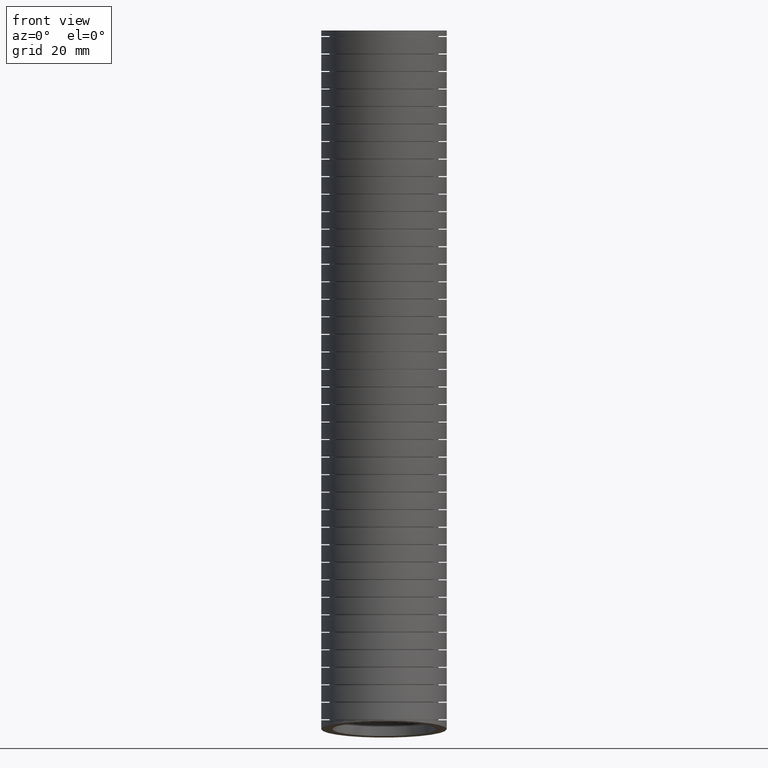
[diagram: clean part render]
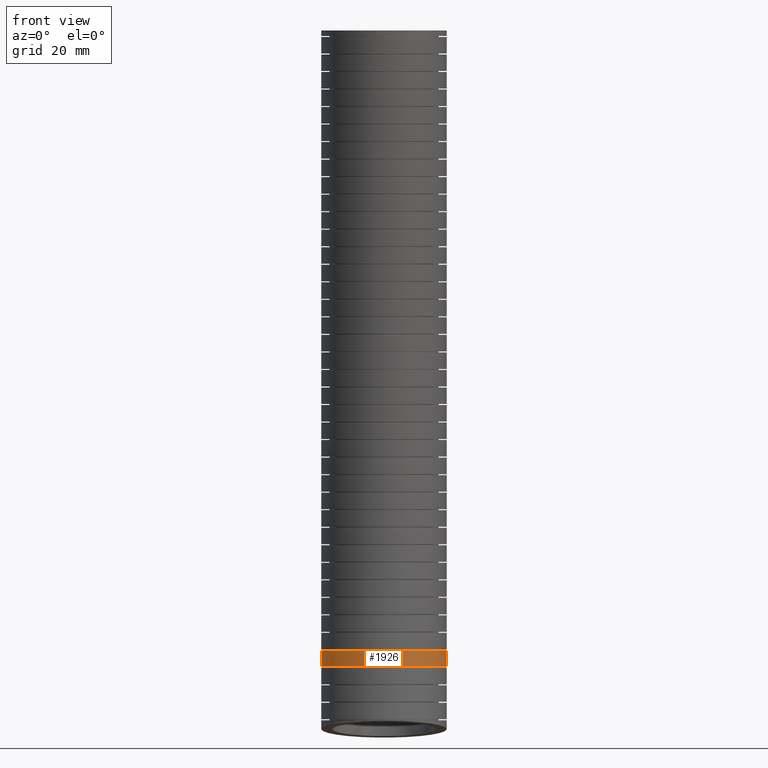
[diagram: same view with one face highlighted and labeled with its STEP entity id]
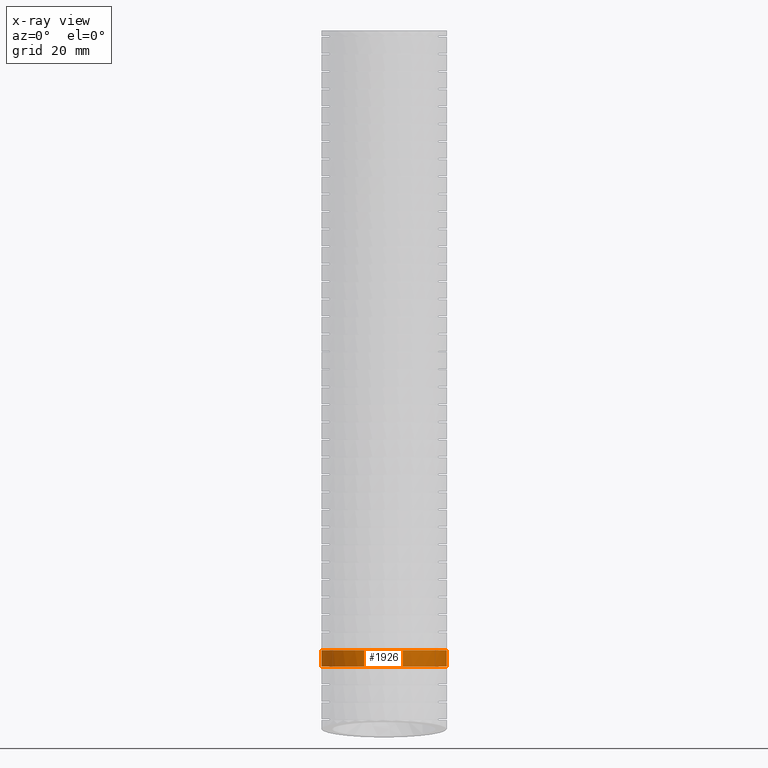
[diagram: x-ray of the same camera — body ghosted, the highlighted face saturated]
A machine part, front view. The second image highlights one B-rep face of the part: STEP entity #1926.
The next image is the same camera in x-ray: the body ghosted, the highlighted face saturated — about 0% of this face is hidden behind the body in this view.
In plain terms, the highlighted face is a freeform B-spline surface patch.
Its self-contained STEP definition (entity closure, byte-faithful):
#1622 = EDGE_CURVE ( 'NONE', #1806, #3375, #13727, .T. ) ;
#1778 = ORIENTED_EDGE ( 'NONE', *, *, #1622, .T. ) ;
#1806 = VERTEX_POINT ( 'NONE', #13771 ) ;
#1831 = EDGE_LOOP ( 'NONE', ( #1778, #3419, #3339, #3176 ) ) ;
#1926 = ADVANCED_FACE ( 'NONE', ( #13828 ), #13897, .T. ) ;
#3163 = EDGE_CURVE ( 'NONE', #1806, #3236, #14461, .T. ) ;
#3169 = EDGE_CURVE ( 'NONE', #3357, #3236, #14589, .T. ) ;
#3176 = ORIENTED_EDGE ( 'NONE', *, *, #3163, .F. ) ;
#3236 = VERTEX_POINT ( 'NONE', #14721 ) ;
#3339 = ORIENTED_EDGE ( 'NONE', *, *, #3169, .T. ) ;
#3357 = VERTEX_POINT ( 'NONE', #14719 ) ;
#3359 = EDGE_CURVE ( 'NONE', #3375, #3357, #14707, .T. ) ;
#3375 = VERTEX_POINT ( 'NONE', #14700 ) ;
#3419 = ORIENTED_EDGE ( 'NONE', *, *, #3359, .T. ) ;
#5152 = CARTESIAN_POINT ( 'NONE',  ( -0.3010226746773556100, -0.5693177854571419600, -6.715992180537742900 ) ) ;
#5872 = CARTESIAN_POINT ( 'NONE',  ( -0.4491044698577261700, -0.4716109052089563200, -6.715992180537743800 ) ) ;
#5875 = CARTESIAN_POINT ( 'NONE',  ( -0.5125833581969087000, -0.4080539764554848600, -6.715992180537744700 ) ) ;
#5880 = CARTESIAN_POINT ( 'NONE',  ( -0.5407619965625187800, -0.3735878549067352400, -6.715992180537740300 ) ) ;
#5881 = CARTESIAN_POINT ( 'NONE',  ( -0.5776780493671406200, -0.3182838068282344300, -6.715992180537738500 ) ) ;
#5882 = CARTESIAN_POINT ( 'NONE',  ( -0.6101343296114297700, -0.2598569095316489200, -6.715992180537736700 ) ) ;
#5883 = CARTESIAN_POINT ( 'NONE',  ( -0.6197751788192145100, -0.2394501638554197000, -6.715992180537743800 ) ) ;
#5884 = CARTESIAN_POINT ( 'NONE',  ( -0.6453534522729331700, -0.1775870445919719200, -6.715992180537739400 ) ) ;
#5885 = CARTESIAN_POINT ( 'NONE',  ( -0.6581945732683639500, -0.1351620142326735700, -6.715992180537736700 ) ) ;
#5886 = CARTESIAN_POINT ( 'NONE',  ( -0.5890988482157940600, -0.2992297376636849400, -6.715992180537736700 ) ) ;
#5887 = CARTESIAN_POINT ( 'NONE',  ( -0.6745151426707732800, -0.04763249242870000500, -6.715992180537742100 ) ) ;
#5888 = CARTESIAN_POINT ( 'NONE',  ( -0.6789176794084493800, -0.002948188080627730600, -6.715992180537740300 ) ) ;
#5889 = CARTESIAN_POINT ( 'NONE',  ( -0.6712169548000144200, -0.06977175491048405500, -6.715992180537734100 ) ) ;
#5890 = CARTESIAN_POINT ( 'NONE',  ( -0.6800000000000002700, 0.01932298455842009300, -6.715992180537740300 ) ) ;
#5891 = CARTESIAN_POINT ( 'NONE',  ( -0.6799999999999999400, 0.04152550107798120400, -6.715992180537740300 ) ) ;
#5892 = CARTESIAN_POINT ( 'NONE',  ( -0.4147614802392646800, -0.4997649454828732600, -6.715992180537743800 ) ) ;
#5893 = CARTESIAN_POINT ( 'NONE',  ( -0.3594863071675639700, -0.5367607100895368500, -6.715992180537742100 ) ) ;
#7604 = CARTESIAN_POINT ( 'NONE',  ( -0.3404298476023444000, -0.5482136501676907500, -6.715992180537742100 ) ) ;
#10696 = CARTESIAN_POINT ( 'NONE',  ( -0.2806365369070575300, -0.5789682209393737200, -6.715992180537748300 ) ) ;
#13673 = CARTESIAN_POINT ( 'NONE',  ( -0.2188705808368187600, -0.6045634752177079200, -6.715992180537747400 ) ) ;
#13674 = CARTESIAN_POINT ( 'NONE',  ( -0.1764618317692536500, -0.6174356396481884800, -6.715992180537742100 ) ) ;
#13676 = CARTESIAN_POINT ( 'NONE',  ( -0.1110106205286280600, -0.6304877829232779000, -6.715992180537742900 ) ) ;
#13677 = CARTESIAN_POINT ( 'NONE',  ( -0.08878130750170595800, -0.6337973666117255900, -6.715992180537740300 ) ) ;
#13678 = CARTESIAN_POINT ( 'NONE',  ( -0.04417871788088120800, -0.6381843482970039900, -6.715992180537738500 ) ) ;
#13680 = CARTESIAN_POINT ( 'NONE',  ( -0.02193520511897531800, -0.6392605931467850700, -6.715992180537743800 ) ) ;
#13681 = CARTESIAN_POINT ( 'NONE',  ( 0.04462707010481106000, -0.6392358737853188800, -6.715992180537746500 ) ) ;
#13682 = CARTESIAN_POINT ( 'NONE',  ( 0.08877917629870549200, -0.6349125238607829000, -6.715992180537748300 ) ) ;
#13683 = CARTESIAN_POINT ( 'NONE',  ( 0.1546638912757301900, -0.6217868243475298500, -6.715992180537749200 ) ) ;
#13685 = CARTESIAN_POINT ( 'NONE',  ( 0.1764863590299713100, -0.6162992007196062000, -6.715992180537740300 ) ) ;
#13686 = CARTESIAN_POINT ( 'NONE',  ( 0.2190692205905642200, -0.6033384197592102100, -6.715992180537742100 ) ) ;
#13687 = CARTESIAN_POINT ( 'NONE',  ( 0.2608201846878093800, -0.5883500924845064300, -6.715992180537749200 ) ) ;
#13689 = CARTESIAN_POINT ( 'NONE',  ( 0.3009296073887871600, -0.5693609101111725100, -6.715992180537742900 ) ) ;
#13690 = CARTESIAN_POINT ( 'NONE',  ( 0.3402055866792841900, -0.5483404135560272500, -6.715992180537742900 ) ) ;
#13692 = CARTESIAN_POINT ( 'NONE',  ( 0.3595301909687599900, -0.5367409145733433900, -6.715992180537737600 ) ) ;
#13693 = CARTESIAN_POINT ( 'NONE',  ( 0.4152800999749602400, -0.4993985233973401400, -6.715992180537740300 ) ) ;
#13695 = CARTESIAN_POINT ( 'NONE',  ( 0.4495132423595202300, -0.4712065497423592000, -6.715992180537746500 ) ) ;
#13696 = CARTESIAN_POINT ( 'NONE',  ( 0.4965657679088272800, -0.4240887944123026300, -6.715992180537742100 ) ) ;
#13697 = CARTESIAN_POINT ( 'NONE',  ( 0.5115286206820670600, -0.4075721506210526800, -6.715992180537742100 ) ) ;
#13699 = CARTESIAN_POINT ( 'NONE',  ( 0.5399652235459245800, -0.3728651963481571200, -6.715992180537744700 ) ) ;
#13700 = CARTESIAN_POINT ( 'NONE',  ( 0.5532956680128069400, -0.3548377223837115800, -6.715992180537740300 ) ) ;
#13701 = CARTESIAN_POINT ( 'NONE',  ( 0.5902874513070330800, -0.2993396002725007800, -6.715992180537739400 ) ) ;
#13703 = CARTESIAN_POINT ( 'NONE',  ( 0.6111628014606199600, -0.2602427310850160000, -6.715992180537737600 ) ) ;
#13705 = CARTESIAN_POINT ( 'NONE',  ( 0.6367464594984082500, -0.1984221979302892300, -6.715992180537736700 ) ) ;
#13707 = CARTESIAN_POINT ( 'NONE',  ( 0.6443388052988091600, -0.1771716042221273800, -6.715992180537744700 ) ) ;
#13709 = CARTESIAN_POINT ( 'NONE',  ( 0.6572726458796244200, -0.1344200598013524100, -6.715992180537746500 ) ) ;
#13712 = CARTESIAN_POINT ( 'NONE',  ( 0.6626513108482020600, -0.1128589832418406400, -6.715992180537739400 ) ) ;
#13715 = CARTESIAN_POINT ( 'NONE',  ( 0.6755952967413205700, -0.04763222931801465400, -6.715992180537738500 ) ) ;
#13717 = CARTESIAN_POINT ( 'NONE',  ( 0.6799999999999998300, -0.003428372918271188500, -6.715992180345874200 ) ) ;
#13719 = CARTESIAN_POINT ( 'NONE',  ( 0.6799999999999998300, 0.04152550110515124800, -6.715992180345874200 ) ) ;
#13727 = B_SPLINE_CURVE_WITH_KNOTS ( 'NONE', 3,
 ( #13719, #13717, #13715, #13712, #13709, #13707, #13705, #13703, #13701, #13700, #13699, #13697, #13696, #13695, #13693, #13692, #13690, #13689, #13687, #13686, #13685, #13683, #13682, #13681, #13680, #13678, #13677, #13676, #13674, #13673, #10696, #5152, #7604, #5893, #5892, #5872, #5875, #5880, #5881, #5886, #5882, #5883, #5884, #5885, #5889, #5887, #5888, #5890, #5891 ),
 .UNSPECIFIED., .F., .F.,
 ( 4, 2, 2, 2, 2, 2, 2, 2, 2, 1, 2, 2, 2, 2, 2, 2, 2, 2, 2, 2, 2, 2, 2, 2, 4 ),
 ( 0.0000000000000000000, 0.003376880197475814900, 0.005065320296213722700, 0.006753760394951629700, 0.01013064059242744200, 0.01181908069116534800, 0.01350752078990325400, 0.01688440098737906800, 0.01857284108611697800, 0.02026128118485488700, 0.02194972128359280000, 0.02363816138233071400, 0.02701504157980654000, 0.02870348167854445300, 0.03039192177728236200, 0.03376880197475818500, 0.03545724207349609800, 0.03714568217223401100, 0.04052256236970982300, 0.04389944256718564300, 0.04558788266592355600, 0.04727632276466145500, 0.05065320296213728100, 0.05234164306087519400, 0.05403008315961310000 ),
 .UNSPECIFIED. ) ;
#13771 = CARTESIAN_POINT ( 'NONE',  ( 0.6799999999999998300, 0.04152550110515124800, -6.715992180345874200 ) ) ;
#13828 = FACE_OUTER_BOUND ( 'NONE', #1831, .T. ) ;
#13897 =( BOUNDED_SURFACE ( )  B_SPLINE_SURFACE ( 3, 3, ( 
 ( #13981, #13980, #13978, #13977, #13975, #13974 ),
 ( #13973, #13971, #13970, #13969, #13968, #13966 ),
 ( #13964, #13963, #13962, #13961, #13960, #13959 ),
 ( #13958, #13956, #13955, #13954, #13952, #13951 ),
 ( #13949, #13947, #13945, #13943, #13941, #13939 ),
 ( #13935, #13932, #13929, #13927, #13925, #13923 ),
 ( #13922, #13920, #13919, #14037, #14035, #14034 ) ),
 .UNSPECIFIED., .F., .F., .F. ) 
 B_SPLINE_SURFACE_WITH_KNOTS ( ( 4, 3, 4 ),
 ( 4, 1, 1, 4 ),
 ( 0.0000000000000000000, 0.5000000000000000000, 1.000000000000000000 ),
 ( 0.0000000000000000000, 0.5599999999999998300, 0.9244357691435686200, 1.000000000000000000 ),
 .UNSPECIFIED. ) 
 GEOMETRIC_REPRESENTATION_ITEM ( )  RATIONAL_B_SPLINE_SURFACE ( (
 ( 1.000000000000000000, 1.000000000000000000, 0.9999999999999998900, 1.000000000000000000, 1.000000000000000000, 1.000000000000000000),
 ( 0.3333333333333333100, 0.3333333333333333100, 0.3333333333333333100, 0.3333333333333333100, 0.3333333333333333100, 0.3333333333333333100),
 ( 0.3333333333333333100, 0.3333333333333333100, 0.3333333333333333100, 0.3333333333333333100, 0.3333333333333333100, 0.3333333333333333100),
 ( 1.000000000000000000, 1.000000000000000000, 0.9999999999999998900, 1.000000000000000000, 1.000000000000000000, 1.000000000000000000),
 ( 0.3333333333333333100, 0.3333333333333333100, 0.3333333333333333100, 0.3333333333333333100, 0.3333333333333333100, 0.3333333333333333100),
 ( 0.3333333333333333100, 0.3333333333333333100, 0.3333333333333333100, 0.3333333333333333100, 0.3333333333333333100, 0.3333333333333333100),
 ( 1.000000000000000000, 1.000000000000000000, 0.9999999999999998900, 1.000000000000000000, 1.000000000000000000, 1.000000000000000000) ) ) 
 REPRESENTATION_ITEM ( '' )  SURFACE ( )  );
#13919 = CARTESIAN_POINT ( 'NONE',  ( 0.6799999999999998300, 0.1669887239008314700, -3.753425867331408000 ) ) ;
#13920 = CARTESIAN_POINT ( 'NONE',  ( 0.6799999999999999400, 0.06299611430032937800, -1.415971326882179200 ) ) ;
#13922 = CARTESIAN_POINT ( 'NONE',  ( 0.6799999999999999400, 0.0000000000000000000, 0.0000000000000000000 ) ) ;
#13923 = CARTESIAN_POINT ( 'NONE',  ( 0.6799999999999998300, 1.317559051196987700, -7.753533657777190100 ) ) ;
#13925 = CARTESIAN_POINT ( 'NONE',  ( 0.6799999999999998300, 1.335631108747101300, -7.555709326537000300 ) ) ;
#13927 = CARTESIAN_POINT ( 'NONE',  ( 0.6800000000000000500, 1.440862184772448300, -6.403805776945382000 ) ) ;
#13929 = CARTESIAN_POINT ( 'NONE',  ( 0.6799999999999998300, 1.528843047282568500, -3.785687112797655500 ) ) ;
#13932 = CARTESIAN_POINT ( 'NONE',  ( 0.6800000000000000500, 1.423695653556495700, -1.428141807974481600 ) ) ;
#13935 = CARTESIAN_POINT ( 'NONE',  ( 0.6800000000000000500, 1.360000000000000100, 0.0000000000000000000 ) ) ;
#13939 = CARTESIAN_POINT ( 'NONE',  ( -0.6799999999999997200, 1.317559051196987700, -7.753533657777190100 ) ) ;
#13941 = CARTESIAN_POINT ( 'NONE',  ( -0.6799999999999998300, 1.335631108747101300, -7.555709326537000300 ) ) ;
#13943 = CARTESIAN_POINT ( 'NONE',  ( -0.6799999999999998300, 1.440862184772448300, -6.403805776945382000 ) ) ;
#13945 = CARTESIAN_POINT ( 'NONE',  ( -0.6799999999999993800, 1.528843047282568500, -3.785687112797655500 ) ) ;
#13947 = CARTESIAN_POINT ( 'NONE',  ( -0.6799999999999997200, 1.423695653556495700, -1.428141807974481600 ) ) ;
#13949 = CARTESIAN_POINT ( 'NONE',  ( -0.6799999999999998300, 1.360000000000000100, 0.0000000000000000000 ) ) ;
#13951 = CARTESIAN_POINT ( 'NONE',  ( -0.6799999999999998300, -0.02999999999999994300, -7.570000000000000300 ) ) ;
#13952 = CARTESIAN_POINT ( 'NONE',  ( -0.6799999999999998300, -0.01268304244353365300, -7.380027536167250300 ) ) ;
#13954 = CARTESIAN_POINT ( 'NONE',  ( -0.6799999999999998300, 0.08815119140610096200, -6.273844317744462300 ) ) ;
#13955 = CARTESIAN_POINT ( 'NONE',  ( -0.6799999999999998300, 0.1669887239008315800, -3.753425867331408000 ) ) ;
#13956 = CARTESIAN_POINT ( 'NONE',  ( -0.6799999999999999400, 0.06299611430032946200, -1.415971326882179200 ) ) ;
#13958 = CARTESIAN_POINT ( 'NONE',  ( -0.6799999999999999400, 8.327598234202001900E-017, 0.0000000000000000000 ) ) ;
#13959 = CARTESIAN_POINT ( 'NONE',  ( -0.6800000000000000500, -1.377559051196987500, -7.386466342222807800 ) ) ;
#13960 = CARTESIAN_POINT ( 'NONE',  ( -0.6800000000000000500, -1.360997193634168900, -7.204345745797499300 ) ) ;
#13961 = CARTESIAN_POINT ( 'NONE',  ( -0.6800000000000000500, -1.264559801960247100, -6.143882858543539900 ) ) ;
#13962 = CARTESIAN_POINT ( 'NONE',  ( -0.6799999999999998300, -1.194865599480906100, -3.721164621865159700 ) ) ;
#13963 = CARTESIAN_POINT ( 'NONE',  ( -0.6800000000000000500, -1.297703424955836600, -1.403800845789877400 ) ) ;
#13964 = CARTESIAN_POINT ( 'NONE',  ( -0.6800000000000000500, -1.360000000000000100, 0.0000000000000000000 ) ) ;
#13966 = CARTESIAN_POINT ( 'NONE',  ( 0.6799999999999998300, -1.377559051196987500, -7.386466342222807800 ) ) ;
#13968 = CARTESIAN_POINT ( 'NONE',  ( 0.6799999999999998300, -1.360997193634168900, -7.204345745797499300 ) ) ;
#13969 = CARTESIAN_POINT ( 'NONE',  ( 0.6800000000000000500, -1.264559801960247100, -6.143882858543539900 ) ) ;
#13970 = CARTESIAN_POINT ( 'NONE',  ( 0.6799999999999998300, -1.194865599480906100, -3.721164621865159700 ) ) ;
#13971 = CARTESIAN_POINT ( 'NONE',  ( 0.6800000000000000500, -1.297703424955836600, -1.403800845789877400 ) ) ;
#13973 = CARTESIAN_POINT ( 'NONE',  ( 0.6800000000000000500, -1.360000000000000100, 0.0000000000000000000 ) ) ;
#13974 = CARTESIAN_POINT ( 'NONE',  ( 0.6799999999999998300, -0.03000000000000002700, -7.570000000000000300 ) ) ;
#13975 = CARTESIAN_POINT ( 'NONE',  ( 0.6799999999999998300, -0.01268304244353372900, -7.380027536167250300 ) ) ;
#13977 = CARTESIAN_POINT ( 'NONE',  ( 0.6799999999999998300, 0.08815119140610085100, -6.273844317744462300 ) ) ;
#13978 = CARTESIAN_POINT ( 'NONE',  ( 0.6799999999999998300, 0.1669887239008314700, -3.753425867331408000 ) ) ;
#13980 = CARTESIAN_POINT ( 'NONE',  ( 0.6799999999999999400, 0.06299611430032937800, -1.415971326882179200 ) ) ;
#13981 = CARTESIAN_POINT ( 'NONE',  ( 0.6799999999999999400, 0.0000000000000000000, 0.0000000000000000000 ) ) ;
#14034 = CARTESIAN_POINT ( 'NONE',  ( 0.6799999999999998300, -0.03000000000000002700, -7.570000000000000300 ) ) ;
#14035 = CARTESIAN_POINT ( 'NONE',  ( 0.6799999999999998300, -0.01268304244353372900, -7.380027536167250300 ) ) ;
#14037 = CARTESIAN_POINT ( 'NONE',  ( 0.6799999999999998300, 0.08815119140610085100, -6.273844317744462300 ) ) ;
#14461 = B_SPLINE_CURVE_WITH_KNOTS ( 'NONE', 3,
 ( #14604, #14603, #14602, #14601 ),
 .UNSPECIFIED., .F., .F.,
 ( 4, 4 ),
 ( 0.8868041312193324400, 0.9105840753854749200 ),
 .UNSPECIFIED. ) ;
#14527 = CARTESIAN_POINT ( 'NONE',  ( 0.5116369281505888100, -0.4209891014912031700, -6.895474618107750000 ) ) ;
#14529 = CARTESIAN_POINT ( 'NONE',  ( 0.4965117700273936100, -0.4377049252267939400, -6.895474618107749100 ) ) ;
#14530 = CARTESIAN_POINT ( 'NONE',  ( 0.4492881313973827700, -0.4850020732415694600, -6.895474618107749100 ) ) ;
#14532 = CARTESIAN_POINT ( 'NONE',  ( 0.4150526015298776100, -0.5131578477584167700, -6.895474618107750900 ) ) ;
#14534 = CARTESIAN_POINT ( 'NONE',  ( 0.3595752763671118400, -0.5503349212559153200, -6.895474618107753500 ) ) ;
#14536 = CARTESIAN_POINT ( 'NONE',  ( 0.3402862281041944000, -0.5619321209655980800, -6.895474618107759700 ) ) ;
#14538 = CARTESIAN_POINT ( 'NONE',  ( 0.3007994143328958100, -0.5830769476227147800, -6.895474618107758900 ) ) ;
#14540 = CARTESIAN_POINT ( 'NONE',  ( 0.2806763306881152600, -0.5926000535080510100, -6.895474618107749100 ) ) ;
#14542 = CARTESIAN_POINT ( 'NONE',  ( 0.2191992515493226300, -0.6181076815747322800, -6.895474618107748200 ) ) ;
#14544 = CARTESIAN_POINT ( 'NONE',  ( 0.1767480922013944500, -0.6310599870858166800, -6.895474618107748200 ) ) ;
#14546 = CARTESIAN_POINT ( 'NONE',  ( 0.1108013778056077700, -0.6442149455964718600, -6.895474618107746400 ) ) ;
#14548 = CARTESIAN_POINT ( 'NONE',  ( 0.08857096918987197900, -0.6475088220870358600, -6.895474618107759700 ) ) ;
#14550 = CARTESIAN_POINT ( 'NONE',  ( 0.04428755335819711800, -0.6518638848937705600, -6.895474618107760600 ) ) ;
#14552 = CARTESIAN_POINT ( 'NONE',  ( -1.730416750843456200E-005, -0.6540279870243576000, -6.895474618107750000 ) ) ;
#14554 = CARTESIAN_POINT ( 'NONE',  ( -0.04436455475158943700, -0.6518602707971530300, -6.895474618107754400 ) ) ;
#14556 = CARTESIAN_POINT ( 'NONE',  ( -0.08873337154588933900, -0.6474888705489592100, -6.895474618107753500 ) ) ;
#14558 = CARTESIAN_POINT ( 'NONE',  ( -0.1110493920916620400, -0.6441717760527010400, -6.895474618107758900 ) ) ;
#14561 = CARTESIAN_POINT ( 'NONE',  ( -0.1768067947069846000, -0.6310355890857883800, -6.895474618107757100 ) ) ;
#14563 = CARTESIAN_POINT ( 'NONE',  ( -0.2192240587217285700, -0.6181023248726819100, -6.895474618107748200 ) ) ;
#14565 = CARTESIAN_POINT ( 'NONE',  ( -0.2807606081471475900, -0.5925626118334266200, -6.895474618107748200 ) ) ;
#14567 = CARTESIAN_POINT ( 'NONE',  ( -0.3009220906582537600, -0.5830187947374292400, -6.895474618107745500 ) ) ;
#14569 = CARTESIAN_POINT ( 'NONE',  ( -0.3405196663524826000, -0.5617995096593762000, -6.895474618107748200 ) ) ;
#14571 = CARTESIAN_POINT ( 'NONE',  ( -0.3596844704358755900, -0.5502653844516468600, -6.895474618107753500 ) ) ;
#14572 = CARTESIAN_POINT ( 'NONE',  ( -0.4150650908931889400, -0.5131421804110134500, -6.895474618107753500 ) ) ;
#14573 = CARTESIAN_POINT ( 'NONE',  ( -0.4493110491506481200, -0.4849895160660993000, -6.895474618107755300 ) ) ;
#14574 = CARTESIAN_POINT ( 'NONE',  ( -0.4966191466693266100, -0.4375921637047531800, -6.895474618107755300 ) ) ;
#14575 = CARTESIAN_POINT ( 'NONE',  ( -0.5117582906040538700, -0.4208477947712894700, -6.895474618107745500 ) ) ;
#14576 = CARTESIAN_POINT ( 'NONE',  ( -0.5400253070708117600, -0.3863025102447731900, -6.895474618107749100 ) ) ;
#14577 = CARTESIAN_POINT ( 'NONE',  ( -0.5532291242492388700, -0.3684379178002327700, -6.895474618107750000 ) ) ;
#14578 = CARTESIAN_POINT ( 'NONE',  ( -0.5901095842038210900, -0.3131052714598939200, -6.895474618107750000 ) ) ;
#14579 = CARTESIAN_POINT ( 'NONE',  ( -0.6111166415322089000, -0.2738317171628630300, -6.895474618107753500 ) ) ;
#14580 = CARTESIAN_POINT ( 'NONE',  ( -0.6454305041817831600, -0.1908150951610726500, -6.895474618107752600 ) ) ;
#14581 = CARTESIAN_POINT ( 'NONE',  ( -0.6582513116066648400, -0.1482939850706627100, -6.895474618107754400 ) ) ;
#14582 = CARTESIAN_POINT ( 'NONE',  ( -0.6712244552245411100, -0.08305060776258146900, -6.895474618107754400 ) ) ;
#14583 = CARTESIAN_POINT ( 'NONE',  ( -0.6744981369562631500, -0.06105740087451830300, -6.895474618107757100 ) ) ;
#14584 = CARTESIAN_POINT ( 'NONE',  ( -0.6788928709040349400, -0.01656819214514092900, -6.895474618107755300 ) ) ;
#14585 = CARTESIAN_POINT ( 'NONE',  ( -0.6799999999999997200, 0.005963444126022871000, -6.895474618107754400 ) ) ;
#14586 = CARTESIAN_POINT ( 'NONE',  ( -0.6799999999999999400, 0.02825459887834664100, -6.895474618107752600 ) ) ;
#14589 = B_SPLINE_CURVE_WITH_KNOTS ( 'NONE', 3,
 ( #14586, #14585, #14584, #14583, #14582, #14581, #14580, #14579, #14578, #14577, #14576, #14575, #14574, #14573, #14572, #14571, #14569, #14567, #14565, #14563, #14561, #14558, #14556, #14554, #14552, #14550, #14548, #14546, #14544, #14542, #14540, #14538, #14536, #14534, #14532, #14530, #14529, #14527, #14673, #14672, #14671, #14668, #14666, #14664, #14662, #14660, #14658, #14656, #14654, #14652, #14650 ),
 .UNSPECIFIED., .F., .F.,
 ( 4, 2, 2, 2, 2, 2, 2, 2, 2, 2, 2, 2, 1, 2, 2, 2, 2, 2, 2, 2, 2, 2, 2, 2, 2, 4 ),
 ( 0.05461855045346698800, 0.05632564668391254500, 0.05803274291435809400, 0.06144693537524920800, 0.06486112783614031400, 0.06656822406658587100, 0.06827532029703142800, 0.07168951275792254100, 0.07339660898836809800, 0.07510370521881365400, 0.07851789767970476800, 0.08022499391015032500, 0.08193209014059588100, 0.08363918637104142400, 0.08534628260148699500, 0.08876047506237809400, 0.09046757129282365100, 0.09217466752326920800, 0.09558885998416030700, 0.09729595621460587800, 0.09900305244505142000, 0.1024172449059425300, 0.1041243411363881000, 0.1058314373668336500, 0.1075385335972792200, 0.1092456298277247700 ),
 .UNSPECIFIED. ) ;
#14601 = CARTESIAN_POINT ( 'NONE',  ( 0.6799999999999998300, 0.02825459890796221100, -6.895474617915700000 ) ) ;
#14602 = CARTESIAN_POINT ( 'NONE',  ( 0.6799999999999998300, 0.03286688620102478500, -6.835655127130016800 ) ) ;
#14603 = CARTESIAN_POINT ( 'NONE',  ( 0.6799999999999998300, 0.03728886361668563200, -6.775827577790291700 ) ) ;
#14604 = CARTESIAN_POINT ( 'NONE',  ( 0.6799999999999998300, 0.04152550110515124800, -6.715992180345874200 ) ) ;
#14650 = CARTESIAN_POINT ( 'NONE',  ( 0.6799999999999998300, 0.02825459890796221100, -6.895474617915700000 ) ) ;
#14652 = CARTESIAN_POINT ( 'NONE',  ( 0.6799999999999998300, 0.005774198052496192600, -6.895474617915701800 ) ) ;
#14654 = CARTESIAN_POINT ( 'NONE',  ( 0.6788813059984163400, -0.01672118519071515200, -6.895474618107754400 ) ) ;
#14656 = CARTESIAN_POINT ( 'NONE',  ( 0.6744884022104917800, -0.06111985586520413800, -6.895474618107753500 ) ) ;
#14658 = CARTESIAN_POINT ( 'NONE',  ( 0.6712181656230403700, -0.08308697027713711500, -6.895474618107750000 ) ) ;
#14660 = CARTESIAN_POINT ( 'NONE',  ( 0.6625708967412399200, -0.1265655751277186300, -6.895474618107753500 ) ) ;
#14662 = CARTESIAN_POINT ( 'NONE',  ( 0.6571938160782404600, -0.1480770551059717700, -6.895474618107750000 ) ) ;
#14664 = CARTESIAN_POINT ( 'NONE',  ( 0.6443124734122074300, -0.1906399824115342600, -6.895474618107750000 ) ) ;
#14666 = CARTESIAN_POINT ( 'NONE',  ( 0.6367818141876624400, -0.2117547616567852000, -6.895474618107749100 ) ) ;
#14668 = CARTESIAN_POINT ( 'NONE',  ( 0.6110484705044603200, -0.2739652247223891600, -6.895474618107750000 ) ) ;
#14671 = CARTESIAN_POINT ( 'NONE',  ( 0.5901047255582466700, -0.3131170978362710600, -6.895474618107755300 ) ) ;
#14672 = CARTESIAN_POINT ( 'NONE',  ( 0.5531993835665542900, -0.3684802670821093500, -6.895474618107755300 ) ) ;
#14673 = CARTESIAN_POINT ( 'NONE',  ( 0.5399759614392304300, -0.3863697847530238000, -6.895474618107750000 ) ) ;
#14688 = CARTESIAN_POINT ( 'NONE',  ( -0.6799999999999999400, 0.02825459887834664100, -6.895474618107752600 ) ) ;
#14689 = CARTESIAN_POINT ( 'NONE',  ( -0.6799999999999998300, 0.03286688618654982200, -6.835655127323086300 ) ) ;
#14691 = CARTESIAN_POINT ( 'NONE',  ( -0.6799999999999998300, 0.03728886360262481700, -6.775827577983239500 ) ) ;
#14692 = CARTESIAN_POINT ( 'NONE',  ( -0.6799999999999999400, 0.04152550107798120400, -6.715992180537740300 ) ) ;
#14700 = CARTESIAN_POINT ( 'NONE',  ( -0.6799999999999999400, 0.04152550107798120400, -6.715992180537740300 ) ) ;
#14707 = B_SPLINE_CURVE_WITH_KNOTS ( 'NONE', 3,
 ( #14692, #14691, #14689, #14688 ),
 .UNSPECIFIED., .F., .F.,
 ( 4, 4 ),
 ( 0.8868041312448767800, 0.9105840754110741100 ),
 .UNSPECIFIED. ) ;
#14719 = CARTESIAN_POINT ( 'NONE',  ( -0.6799999999999999400, 0.02825459887834664100, -6.895474618107752600 ) ) ;
#14721 = CARTESIAN_POINT ( 'NONE',  ( 0.6799999999999998300, 0.02825459890796221100, -6.895474617915700000 ) ) ;